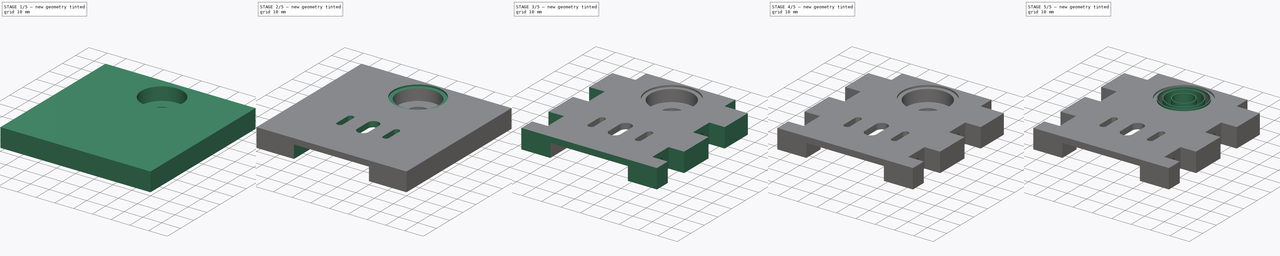
[diagram: build sequence overview — one tinted view per stage of 5, left to right]
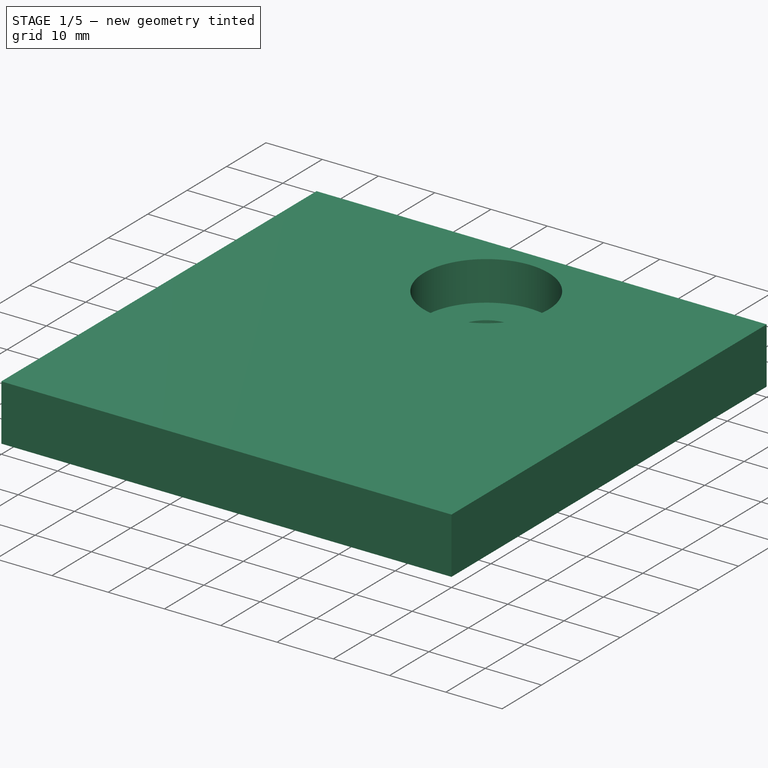
[diagram: stage 1 of 5 — iso view after this stage's code; geometry added in this stage tinted green]
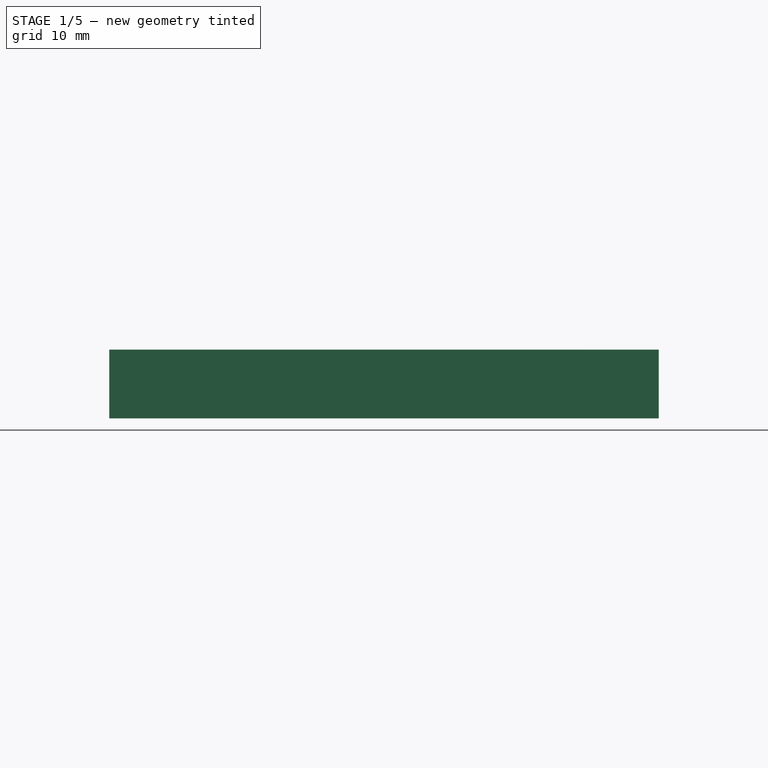
[diagram: stage 1 of 5 — front view after this stage's code; geometry added in this stage tinted green]
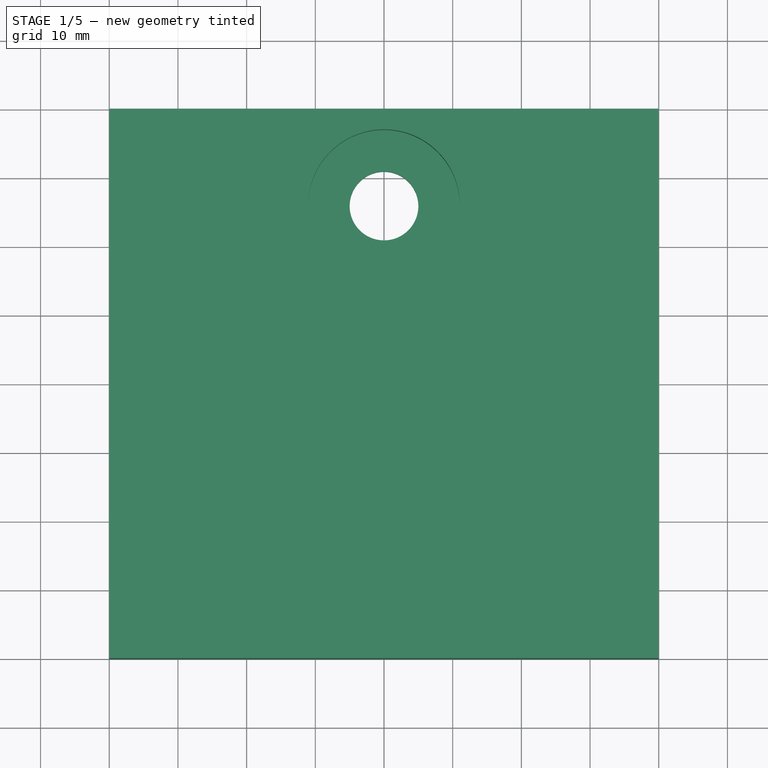
[diagram: stage 1 of 5 — top view after this stage's code; geometry added in this stage tinted green]
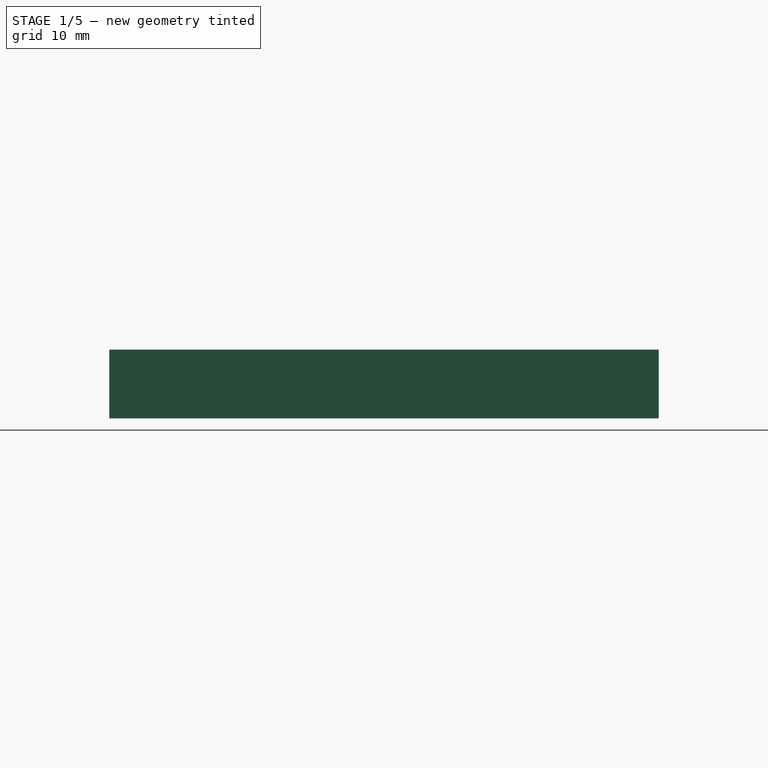
[diagram: stage 1 of 5 — right view after this stage's code; geometry added in this stage tinted green]
FCSTD DOCUMENT  (FreeCAD 0.15R4671 (Git))
Label: Halter Fraesspindel Top
License: All rights reserved
LicenseURL: http://de.wikipedia.org/wiki/Alle_Rechte_vorbehalten
objects: Sketcher::SketchObject×17, PartDesign::Pocket×12, PartDesign::Pad×5, Part::Cut×1
note: 52 computed .brp shape members not serialized (recipe doc carries the construction recipe); baked Part::Feature solids carry a one-line shape summary decoded from their .brp

FEATURE [Sketcher::SketchObject] Sketch
  sketch-geometry (4):
    g0: LineSegment StartX=-40 StartY=40 StartZ=0 EndX=40 EndY=40 EndZ=0
    g1: LineSegment StartX=40 StartY=40 StartZ=0 EndX=40 EndY=-40 EndZ=0
    g2: LineSegment StartX=40 StartY=-40 StartZ=0 EndX=-40 EndY=-40 EndZ=0
    g3: LineSegment StartX=-40 StartY=-40 StartZ=0 EndX=-40 EndY=40 EndZ=0
  constraints (12):
    c: Coincident(g0,g1)
    c: Coincident(g1,g2)
    c: Coincident(g2,g3)
    c: Coincident(g3,g0)
    c: Horizontal(g0)
    c: Horizontal(g2)
    c: Vertical(g1)
    c: Vertical(g3)
    c: Symmetric(g0,g2,g-1)
    c: Symmetric(g0,g0,g-2)
    c: DistanceY(g1) = -80
    c: Equal(g0,g1)
FEATURE [PartDesign::Pad] Pad
  Length = 10
  Length2 = 100
  Sketch = -> Sketch
  Type = 0
FEATURE [Sketcher::SketchObject] Sketch001
  ExternalGeometry = -> [Pad]
  Placement = pos=(0,0,10) rot=(0,0,1;0rad)
  Support = -> Pad [Face6]
  sketch-geometry (1):
    g0: Circle CenterX=0 CenterY=25.95 CenterZ=0 NormalX=0 NormalY=0 NormalZ=1 Radius=11.05
  constraints (3):
    c: PointOnObject(g0,g-2)
    c: Radius(g0) = 11.05
    c: DistanceY(g0,g-3) = 14.05
FEATURE [PartDesign::Pocket] Pocket
  Length = 7
  Sketch = -> Sketch001
  Type = 0
FEATURE [Sketcher::SketchObject] Sketch002
  ExternalGeometry = -> [Pocket]
  Placement = pos=(0,0,3) rot=(0,0,1;0rad)
  Support = -> Pocket [Face8]
  sketch-geometry (1):
    g0: Circle CenterX=0 CenterY=25.95 CenterZ=0 NormalX=0 NormalY=0 NormalZ=1 Radius=5
  constraints (2):
    c: Coincident(g0,g-3)
    c: Radius(g0) = 5
FEATURE [PartDesign::Pocket] Pocket001
  Length = 5
  Sketch = -> Sketch002
  Type = 1
FEATURE [Sketcher::SketchObject] Sketch016
  Placement = pos=(0,29,0) rot=(1,0,0;1.5708rad)
  sketch-geometry (20):
    g0: LineSegment [constr] StartX=-29 StartY=0.929681 StartZ=0 EndX=-25.475 EndY=2.96484 EndZ=0
    g1: LineSegment [constr] StartX=-25.475 StartY=2.96484 StartZ=0 EndX=-25.475 EndY=7.03516 EndZ=0
    g2: LineSegment StartX=-25.475 StartY=7.03516 StartZ=0 EndX=-29 EndY=9.07032 EndZ=0
    g3: LineSegment StartX=-29 StartY=9.07032 StartZ=0 EndX=-32.525 EndY=7.03516 EndZ=0
    g4: LineSegment StartX=-32.525 StartY=7.03516 StartZ=0 EndX=-32.525 EndY=2.96484 EndZ=0
    g5: LineSegment [constr] StartX=-32.525 StartY=2.96484 StartZ=0 EndX=-29 EndY=0.929681 EndZ=0
    g6: Circle [constr] CenterX=-29 CenterY=5 CenterZ=0 NormalX=0 NormalY=0 NormalZ=1 Radius=4.07032
    g7: LineSegment [constr] StartX=29 StartY=0.929681 StartZ=0 EndX=32.525 EndY=2.96484 EndZ=0
    g8: LineSegment [constr] StartX=32.525 StartY=2.96484 StartZ=0 EndX=32.525 EndY=7.03516 EndZ=0
    g9: LineSegment StartX=32.525 StartY=7.03516 StartZ=0 EndX=29 EndY=9.07032 EndZ=0
    g10: LineSegment StartX=29 StartY=9.07032 StartZ=0 EndX=25.475 EndY=7.03516 EndZ=0
    g11: LineSegment StartX=25.475 StartY=7.03516 StartZ=0 EndX=25.475 EndY=2.96484 EndZ=0
    g12: LineSegment [constr] StartX=25.475 StartY=2.96484 StartZ=0 EndX=29 EndY=0.929681 EndZ=0
    g13: Circle [constr] CenterX=29 CenterY=5 CenterZ=0 NormalX=0 NormalY=0 NormalZ=1 Radius=4.07032
    g14: LineSegment StartX=-25.475 StartY=7.03516 StartZ=0 EndX=-25.475 EndY=0 EndZ=0
    g15: LineSegment StartX=-25.475 StartY=0 StartZ=0 EndX=-32.525 EndY=0 EndZ=0
    g16: LineSegment StartX=-32.525 StartY=0 StartZ=0 EndX=-32.525 EndY=2.96484 EndZ=0
    g17: LineSegment StartX=32.525 StartY=7.03516 StartZ=0 EndX=32.525 EndY=0 EndZ=0
    g18: LineSegment StartX=32.525 StartY=0 StartZ=0 EndX=25.475 EndY=0 EndZ=0
    g19: LineSegment StartX=25.475 StartY=0 StartZ=0 EndX=25.475 EndY=2.96484 EndZ=0
  constraints (49):
    c: Coincident(g0,g1)
    c: Coincident(g1,g2)
    c: Coincident(g2,g3)
    c: Coincident(g3,g4)
    c: Coincident(g4,g5)
    c: Coincident(g5,g0)
    c: Equal(g0, g1-g5) x5
    c: PointOnObject(g0,g6)
    c: PointOnObject(g1,g6)
    c: PointOnObject(g2,g6)
    c: PointOnObject(g3,g6)
    c: PointOnObject(g4,g6)
    c: PointOnObject(g5,g6)
    c: Coincident(g7,g8)
    c: Coincident(g8,g9)
    c: Coincident(g9,g10)
    c: Coincident(g10,g11)
    c: Coincident(g11,g12)
    c: Coincident(g12,g7)
    c: Equal(g7, g8-g12) x5
    c: PointOnObject(g7,g13)
    c: PointOnObject(g8,g13)
    c: PointOnObject(g9,g13)
    c: PointOnObject(g10,g13)
    c: PointOnObject(g11,g13)
    c: PointOnObject(g12,g13)
    c: Equal(g13,g6)
    c: Symmetric(g6,g13,g-2)
    c: DistanceX(g-1,g6) = -29
    c: DistanceY(g-1,g6) = 5
    c: Distance(g0,g3) = 7.05
    c: Coincident(g14,g15)
    c: Coincident(g15,g16)
    c: Horizontal(g15)
    c: Vertical(g14)
    c: Vertical(g16)
    c: PointOnObject(g14,g-1)
    c: Coincident(g17,g18)
    c: Coincident(g18,g19)
    c: Horizontal(g18)
    c: Vertical(g17)
    c: Vertical(g19)
    c: PointOnObject(g17,g-1)
    c: Coincident(g8,g17)
    c: Coincident(g11,g19)
    c: Vertical(g8)
    c: Coincident(g1,g14)
    c: Coincident(g4,g16)
    c: Vertical(g1)
FEATURE [PartDesign::Pad] Pad001
  Length = 3.3
  Length2 = 100
  Placement = pos=(0,29,0) rot=(1,0,0;1.5708rad)
  Sketch = -> Sketch016
  Type = 0
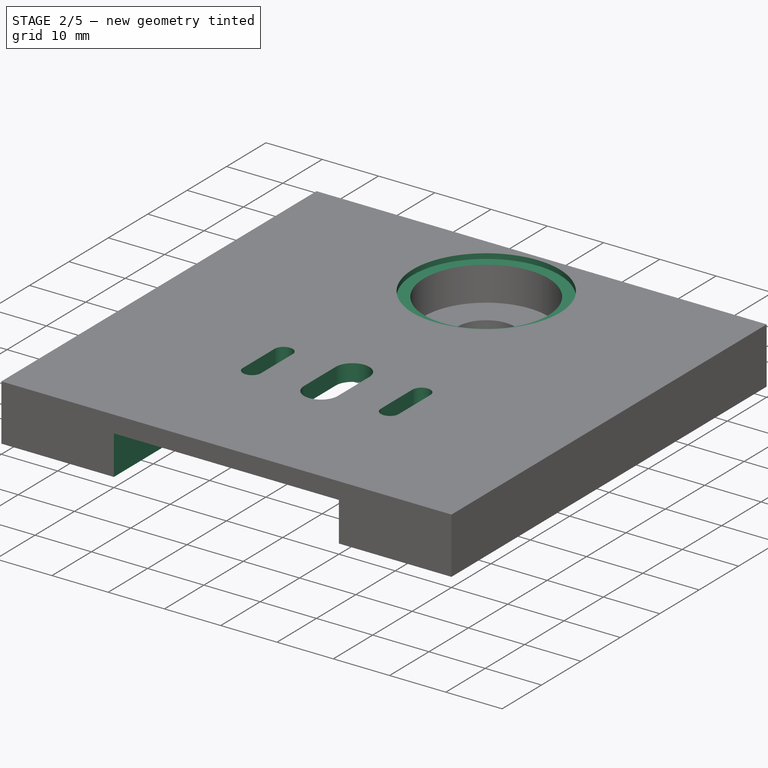
[diagram: stage 2 of 5 — iso view after this stage's code; geometry added in this stage tinted green]
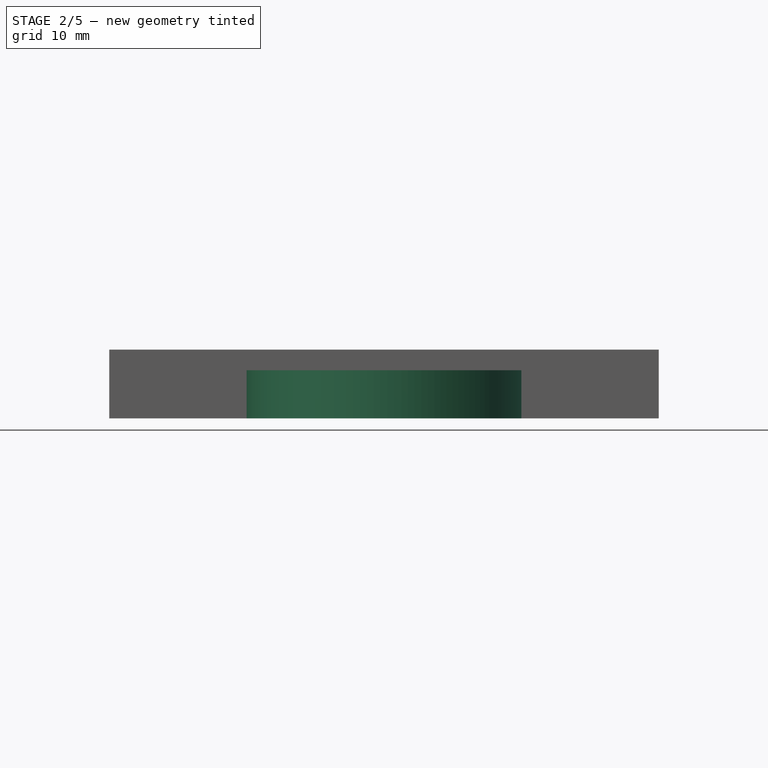
[diagram: stage 2 of 5 — front view after this stage's code; geometry added in this stage tinted green]
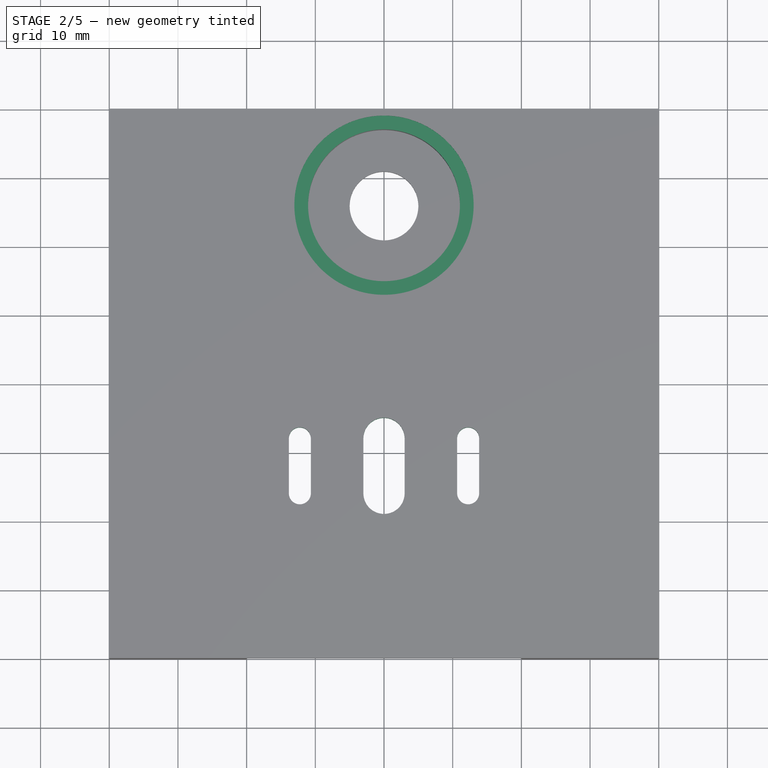
[diagram: stage 2 of 5 — top view after this stage's code; geometry added in this stage tinted green]
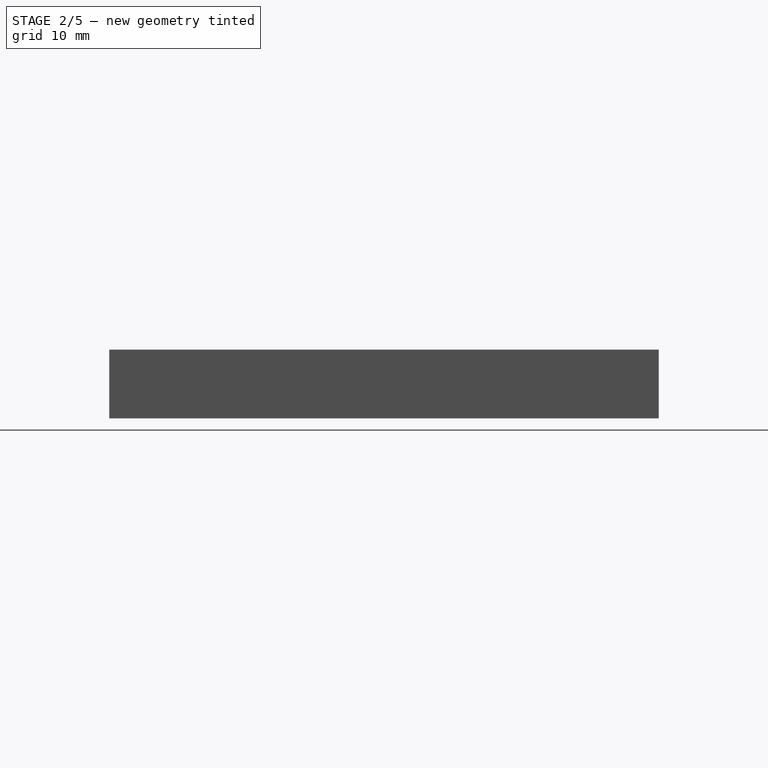
[diagram: stage 2 of 5 — right view after this stage's code; geometry added in this stage tinted green]
FEATURE [Sketcher::SketchObject] Sketch003
  ExternalGeometry = -> [Pocket001]
  Placement = pos=(0,0,10) rot=(0,0,1;0rad)
  Support = -> Pocket001 [Face5]
  sketch-geometry (1):
    g0: Circle CenterX=0 CenterY=25.95 CenterZ=0 NormalX=0 NormalY=0 NormalZ=1 Radius=13.05
  constraints (2):
    c: Coincident(g0,g-3)
    c: Radius(g0) = 13.05
FEATURE [PartDesign::Pocket] Pocket002
  Length = 0.9
  Sketch = -> Sketch003
  Type = 0
FEATURE [Sketcher::SketchObject] Sketch004
  ExternalGeometry = -> [Pocket002]
  Placement = pos=(0,0,0) rot=(1,0,0;3.14159rad)
  Support = -> Pocket002 [Face4]
  sketch-geometry (5):
    g0: LineSegment [constr] StartX=-40 StartY=-10 StartZ=0 EndX=40 EndY=-10 EndZ=0
    g1: ArcOfCircle CenterX=0 CenterY=10 CenterZ=0 NormalX=0 NormalY=0 NormalZ=1 Radius=20 StartAngle=3.14159 EndAngle=6.28319
    g2: LineSegment StartX=-20 StartY=40 StartZ=0 EndX=-20 EndY=10 EndZ=0
    g3: LineSegment StartX=20 StartY=40 StartZ=0 EndX=20 EndY=10 EndZ=0
    g4: LineSegment StartX=20 StartY=40 StartZ=0 EndX=-20 EndY=40 EndZ=0
  constraints (15):
    c: PointOnObject(g0,g-4)
    c: PointOnObject(g0,g-3)
    c: Horizontal(g0)
    c: DistanceY(g0,g-3) = -30
    c: Tangent(g2,g1) = -1.5708
    c: Tangent(g3,g1) = 1.5708
    c: Vertical(g2)
    c: PointOnObject(g1,g-2)
    c: Tangent(g1,g0)
    c: Radius(g1) = 20
    c: Coincident(g4,g3)
    c: Coincident(g4,g2)
    c: Horizontal(g4)
    c: Vertical(g3)
    c: PointOnObject(g-3,g4)
FEATURE [PartDesign::Pocket] Pocket003
  Length = 7
  Sketch = -> Sketch004
  Type = 0
FEATURE [Sketcher::SketchObject] Sketch005
  ExternalGeometry = -> [Pocket003]
  Placement = pos=(0,0,7) rot=(1,0,0;3.14159rad)
  Support = -> Pocket003 [Face12]
  sketch-geometry (17):
    g0: ArcOfCircle CenterX=0 CenterY=16 CenterZ=0 NormalX=0 NormalY=0 NormalZ=1 Radius=3 StartAngle=0 EndAngle=3.14159
    g1: ArcOfCircle CenterX=0 CenterY=8 CenterZ=0 NormalX=0 NormalY=0 NormalZ=1 Radius=3 StartAngle=3.14159 EndAngle=6.28319
    g2: LineSegment StartX=-3 StartY=16 StartZ=0 EndX=-3 EndY=8 EndZ=0
    g3: LineSegment StartX=3 StartY=16 StartZ=0 EndX=3 EndY=8 EndZ=0
    g4: LineSegment [constr] StartX=0 StartY=16 StartZ=0 EndX=0 EndY=12 EndZ=0
    g5: LineSegment [constr] StartX=0 StartY=12 StartZ=0 EndX=0 EndY=8 EndZ=0
    g6: Circle [constr] CenterX=-12.25 CenterY=12 CenterZ=0 NormalX=0 NormalY=0 NormalZ=1 Radius=1.6
    g7: Circle [constr] CenterX=12.25 CenterY=12 CenterZ=0 NormalX=0 NormalY=0 NormalZ=1 Radius=1.6
    g8: LineSegment [constr] StartX=-12.25 StartY=12 StartZ=0 EndX=12.25 EndY=12 EndZ=0
    g9: ArcOfCircle CenterX=12.25 CenterY=16 CenterZ=0 NormalX=0 NormalY=0 NormalZ=1 Radius=1.6 StartAngle=0 EndAngle=3.14159
    g10: ArcOfCircle CenterX=12.25 CenterY=8 CenterZ=0 NormalX=0 NormalY=0 NormalZ=1 Radius=1.6 StartAngle=3.14159 EndAngle=6.28319
    g11: LineSegment StartX=10.65 StartY=16 StartZ=0 EndX=10.65 EndY=8 EndZ=0
    g12: LineSegment StartX=13.85 StartY=16 StartZ=0 EndX=13.85 EndY=8 EndZ=0
    g13: ArcOfCircle CenterX=-12.25 CenterY=16 CenterZ=0 NormalX=0 NormalY=0 NormalZ=1 Radius=1.6 StartAngle=0 EndAngle=3.14159
    g14: ArcOfCircle CenterX=-12.25 CenterY=8 CenterZ=0 NormalX=0 NormalY=0 NormalZ=1 Radius=1.6 StartAngle=3.14159 EndAngle=6.28319
    g15: LineSegment StartX=-13.85 StartY=16 StartZ=0 EndX=-13.85 EndY=8 EndZ=0
    g16: LineSegment StartX=-10.65 StartY=16 StartZ=0 EndX=-10.65 EndY=8 EndZ=0
  constraints (43):
    c: Tangent(g0,g3) = 1.5708
    c: Tangent(g0,g2) = -1.5708
    c: Tangent(g2,g1) = -1.5708
    c: Tangent(g3,g1) = 1.5708
    c: Vertical(g2)
    c: Equal(g0,g1)
    c: Radius(g1) = 3
    c: PointOnObject(g1,g-2)
    c: Vertical(g4)
    c: Coincident(g4,g5)
    c: Vertical(g5)
    c: Equal(g4,g5)
    c: Coincident(g4,g0)
    c: Coincident(g5,g1)
    c: DistanceY(g1,g-4) = 2
    c: DistanceY(g3) = -8
    c: Symmetric(g7,g6,g-2)
    c: DistanceX(g6,g7) = 24.5
    c: Equal(g6,g7)
    c: Coincident(g6,g8)
    c: Coincident(g8,g7)
    c: PointOnObject(g4,g8)
    c: Tangent(g9,g12) = 1.5708
    c: Tangent(g9,g11) = -1.5708
    c: Tangent(g11,g10) = -1.5708
    c: Tangent(g12,g10) = 1.5708
    c: Vertical(g11)
    c: Equal(g9,g10)
    c: Equal(g7,g10)
    c: Radius(g6) = 1.6
    c: Symmetric(g9,g10,g8)
    c: Tangent(g11,g7)
    c: DistanceY(g12) = -8
    c: Tangent(g13,g16) = 1.5708
    c: Tangent(g13,g15) = -1.5708
    c: Tangent(g15,g14) = -1.5708
    c: Tangent(g16,g14) = 1.5708
    c: Vertical(g15)
    c: Equal(g13,g14)
    c: Equal(g14,g6)
    c: Tangent(g6,g16)
    c: Symmetric(g13,g14,g8)
    c: Equal(g15,g11)
FEATURE [PartDesign::Pocket] Pocket004
  Length = 5
  Sketch = -> Sketch005
  Type = 1
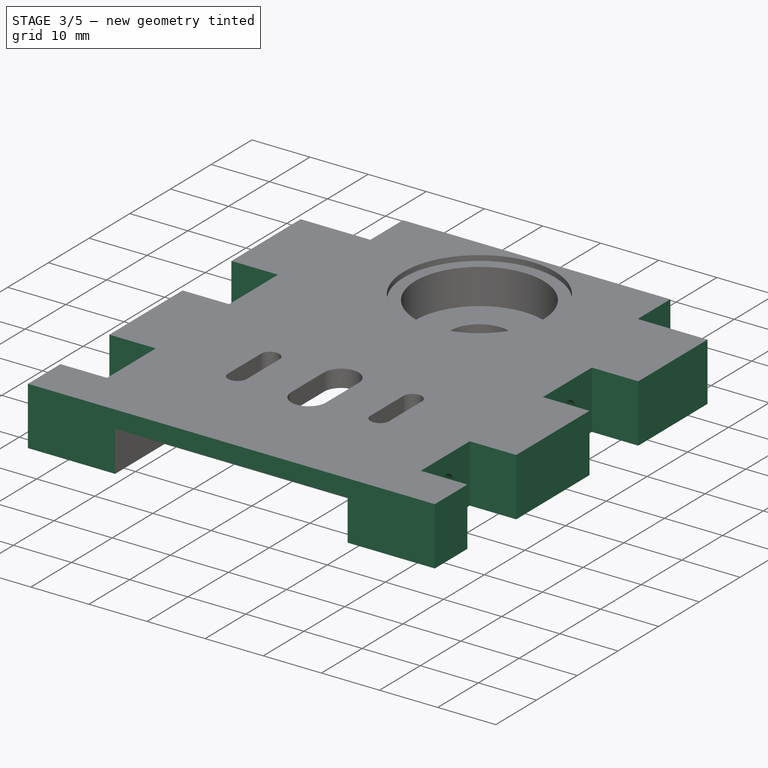
[diagram: stage 3 of 5 — iso view after this stage's code; geometry added in this stage tinted green]
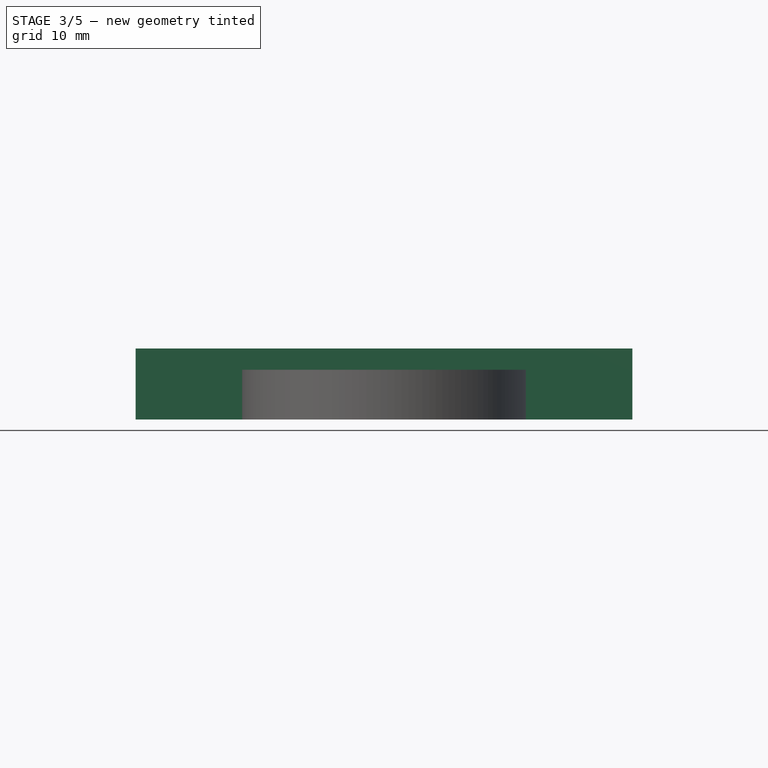
[diagram: stage 3 of 5 — front view after this stage's code; geometry added in this stage tinted green]
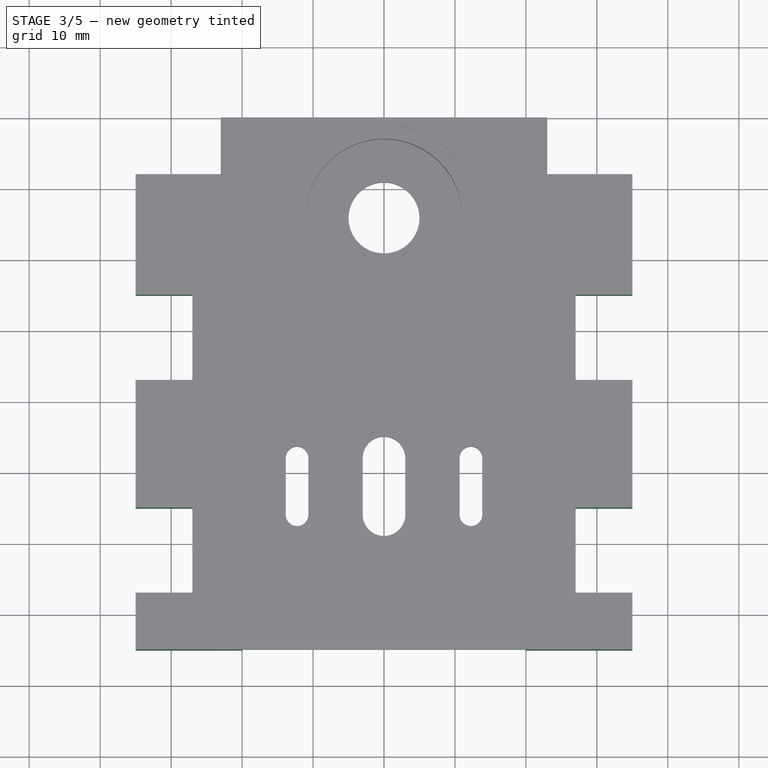
[diagram: stage 3 of 5 — top view after this stage's code; geometry added in this stage tinted green]
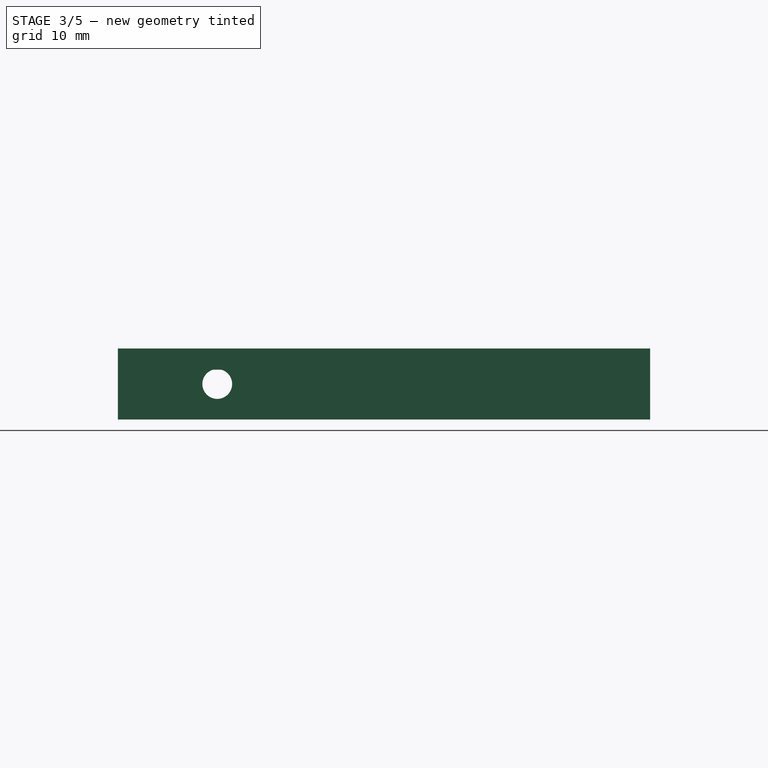
[diagram: stage 3 of 5 — right view after this stage's code; geometry added in this stage tinted green]
FEATURE [Sketcher::SketchObject] Sketch006
  ExternalGeometry = -> [Pocket004]
  Placement = pos=(0,0,10) rot=(0,0,1;0rad)
  Support = -> Pocket004 [Face5]
  sketch-geometry (14):
    g0: LineSegment StartX=-40 StartY=40 StartZ=0 EndX=-35 EndY=40 EndZ=0
    g1: LineSegment [constr] StartX=-35 StartY=40 StartZ=0 EndX=-35 EndY=-40 EndZ=0
    g2: LineSegment StartX=-35 StartY=-40 StartZ=0 EndX=-40 EndY=-40 EndZ=0
    g3: LineSegment StartX=-40 StartY=-40 StartZ=0 EndX=-40 EndY=40 EndZ=0
    g4: LineSegment StartX=40 StartY=40 StartZ=0 EndX=35 EndY=40 EndZ=0
    g5: LineSegment [constr] StartX=35 StartY=40 StartZ=0 EndX=35 EndY=-40 EndZ=0
    g6: LineSegment StartX=35 StartY=-40 StartZ=0 EndX=40 EndY=-40 EndZ=0
    g7: LineSegment StartX=40 StartY=-40 StartZ=0 EndX=40 EndY=40 EndZ=0
    g8: LineSegment StartX=-35 StartY=-40 StartZ=0 EndX=35 EndY=-40 EndZ=0
    g9: LineSegment [constr] StartX=35 StartY=-40 StartZ=0 EndX=35 EndY=-35 EndZ=0
    g10: LineSegment StartX=35 StartY=-35 StartZ=0 EndX=-35 EndY=-35 EndZ=0
    g11: LineSegment [constr] StartX=-35 StartY=-35 StartZ=0 EndX=-35 EndY=-40 EndZ=0
    g12: LineSegment StartX=-35 StartY=-35 StartZ=0 EndX=-35 EndY=40 EndZ=0
    g13: LineSegment StartX=35 StartY=40 StartZ=0 EndX=35 EndY=-35 EndZ=0
  constraints (37):
    c: Coincident(g0,g1)
    c: Coincident(g1,g2)
    c: Coincident(g2,g3)
    c: Coincident(g3,g0)
    c: Horizontal(g0)
    c: Horizontal(g2)
    c: Vertical(g1)
    c: Vertical(g3)
    c: Coincident(g0,g-4)
    c: Coincident(g4,g5)
    c: Coincident(g5,g6)
    c: Coincident(g6,g7)
    c: Coincident(g7,g4)
    c: Horizontal(g4)
    c: Horizontal(g6)
    c: Vertical(g5)
    c: Vertical(g7)
    c: Coincident(g4,g-3)
    c: Equal(g6,g2)
    c: Coincident(g2,g-4)
    c: Coincident(g6,g-3)
    c: DistanceX(g6) = 5
    c: Coincident(g8,g9)
    c: Coincident(g9,g10)
    c: Coincident(g10,g11)
    c: Coincident(g11,g8)
    c: Horizontal(g8)
    c: Horizontal(g10)
    c: Vertical(g9)
    c: Vertical(g11)
    c: DistanceY(g9) = 5
    c: Coincident(g8,g5)
    c: Coincident(g8,g1)
    c: Coincident(g12,g10)
    c: Coincident(g12,g0)
    c: Coincident(g13,g4)
    c: Coincident(g9,g13)
FEATURE [PartDesign::Pocket] Pocket005
  Length = 5
  Sketch = -> Sketch006
  Type = 1
FEATURE [Sketcher::SketchObject] Sketch009
  ExternalGeometry = -> [Pocket005]
  Placement = pos=(0,0,10) rot=(0,0,1;0rad)
  Support = -> Pocket005 [Face5]
  sketch-geometry (24):
    g0: LineSegment StartX=-35 StartY=15 StartZ=0 EndX=-27 EndY=15 EndZ=0
    g1: LineSegment StartX=-27 StartY=15 StartZ=0 EndX=-27 EndY=3 EndZ=0
    g2: LineSegment StartX=-27 StartY=3 StartZ=0 EndX=-35 EndY=3 EndZ=0
    g3: LineSegment StartX=-35 StartY=3 StartZ=0 EndX=-35 EndY=15 EndZ=0
    g4: LineSegment StartX=35 StartY=15 StartZ=0 EndX=27 EndY=15 EndZ=0
    g5: LineSegment StartX=27 StartY=15 StartZ=0 EndX=27 EndY=3 EndZ=0
    g6: LineSegment StartX=27 StartY=3 StartZ=0 EndX=35 EndY=3 EndZ=0
    g7: LineSegment StartX=35 StartY=3 StartZ=0 EndX=35 EndY=15 EndZ=0
    g8: LineSegment StartX=-35 StartY=-15 StartZ=0 EndX=-27 EndY=-15 EndZ=0
    g9: LineSegment StartX=-27 StartY=-15 StartZ=0 EndX=-27 EndY=-27 EndZ=0
    g10: LineSegment StartX=-27 StartY=-27 StartZ=0 EndX=-35 EndY=-27 EndZ=0
    g11: LineSegment StartX=-35 StartY=-27 StartZ=0 EndX=-35 EndY=-15 EndZ=0
    g12: LineSegment StartX=35 StartY=-15 StartZ=0 EndX=27 EndY=-15 EndZ=0
    g13: LineSegment StartX=27 StartY=-15 StartZ=0 EndX=27 EndY=-27 EndZ=0
    g14: LineSegment StartX=27 StartY=-27 StartZ=0 EndX=35 EndY=-27 EndZ=0
    g15: LineSegment StartX=35 StartY=-27 StartZ=0 EndX=35 EndY=-15 EndZ=0
    g16: LineSegment StartX=-35 StartY=40 StartZ=0 EndX=-23 EndY=40 EndZ=0
    g17: LineSegment StartX=-23 StartY=40 StartZ=0 EndX=-23 EndY=32 EndZ=0
    g18: LineSegment StartX=-23 StartY=32 StartZ=0 EndX=-35 EndY=32 EndZ=0
    g19: LineSegment StartX=-35 StartY=32 StartZ=0 EndX=-35 EndY=40 EndZ=0
    g20: LineSegment StartX=35 StartY=40 StartZ=0 EndX=23 EndY=40 EndZ=0
    g21: LineSegment StartX=23 StartY=40 StartZ=0 EndX=23 EndY=32 EndZ=0
    g22: LineSegment StartX=23 StartY=32 StartZ=0 EndX=35 EndY=32 EndZ=0
    g23: LineSegment StartX=35 StartY=32 StartZ=0 EndX=35 EndY=40 EndZ=0
  constraints (68):
    c: Coincident(g0,g1)
    c: Coincident(g1,g2)
    c: Coincident(g2,g3)
    c: Coincident(g3,g0)
    c: Horizontal(g0)
    c: Horizontal(g2)
    c: Vertical(g1)
    c: Vertical(g3)
    c: Coincident(g4,g5)
    c: Coincident(g5,g6)
    c: Coincident(g6,g7)
    c: Coincident(g7,g4)
    c: Horizontal(g4)
    c: Horizontal(g6)
    c: Vertical(g5)
    c: Vertical(g7)
    c: Coincident(g8,g9)
    c: Coincident(g9,g10)
    c: Coincident(g10,g11)
    c: Coincident(g11,g8)
    c: Horizontal(g8)
    c: Horizontal(g10)
    c: Vertical(g9)
    c: Vertical(g11)
    c: Coincident(g12,g13)
    c: Coincident(g13,g14)
    c: Coincident(g14,g15)
    c: Coincident(g15,g12)
    c: Horizontal(g12)
    c: Horizontal(g14)
    c: Vertical(g13)
    c: Vertical(g15)
    c: Equal(g8,g2)
    c: DistanceX(g0) = 8
    c: Symmetric(g1,g5,g-2)
    c: Symmetric(g9,g13,g-2)
    c: Coincident(g16,g17)
    c: Coincident(g17,g18)
    c: Coincident(g18,g19)
    c: Coincident(g19,g16)
    c: Horizontal(g16)
    c: Horizontal(g18)
    c: Vertical(g17)
    c: Vertical(g19)
    c: Coincident(g16,g-4)
    c: Coincident(g20,g21)
    c: Coincident(g21,g22)
    c: Coincident(g22,g23)
    c: Coincident(g23,g20)
    c: Horizontal(g20)
    c: Horizontal(g22)
    c: Vertical(g21)
    c: Vertical(g23)
    c: Coincident(g20,g-3)
    c: PointOnObject(g4,g-3)
    c: PointOnObject(g12,g-3)
    c: Equal(g4,g12)
    c: Equal(g8,g12)
    c: Equal(g5,g13)
    c: Equal(g13,g9)
    c: Equal(g9,g1)
    c: DistanceY(g13) = -12
    c: DistanceY(g16,g8) = -55
    c: DistanceY(g0,g16) = 25
    c: Equal(g18,g22)
    c: Equal(g22,g5)
    c: Equal(g21,g17)
    c: Equal(g17,g0)
FEATURE [PartDesign::Pocket] Pocket008
  Length = 5
  Sketch = -> Sketch009
  Type = 1
FEATURE [Sketcher::SketchObject] Sketch010
  ExternalGeometry = -> [Pocket008]
  Placement = pos=(-27,0,0) rot=(0.57735,-0.57735,-0.57735;2.0944rad)
  Support = -> Pocket008 [Face23]
  sketch-geometry (6):
    g0: LineSegment [constr] StartX=-15 StartY=10 StartZ=0 EndX=-3 EndY=0 EndZ=0
    g1: LineSegment [constr] StartX=-15 StartY=0 StartZ=0 EndX=-3 EndY=10 EndZ=0
    g2: LineSegment [constr] StartX=15 StartY=10 StartZ=0 EndX=27 EndY=0 EndZ=0
    g3: LineSegment [constr] StartX=15 StartY=0 StartZ=0 EndX=27 EndY=10 EndZ=0
    g4: Circle CenterX=-9 CenterY=5 CenterZ=0 NormalX=0 NormalY=0 NormalZ=1 Radius=2.1
    g5: Circle CenterX=21 CenterY=5 CenterZ=0 NormalX=0 NormalY=0 NormalZ=1 Radius=2.1
  constraints (14):
    c: Coincident(g0,g-6)
    c: Coincident(g0,g-5)
    c: Coincident(g1,g-6)
    c: Coincident(g1,g-5)
    c: Coincident(g2,g-4)
    c: Coincident(g2,g-3)
    c: Coincident(g3,g-4)
    c: Coincident(g3,g-3)
    c: Equal(g4,g5)
    c: Radius(g5) = 2.1
    c: PointOnObject(g4,g0)
    c: PointOnObject(g4,g1)
    c: PointOnObject(g5,g3)
    c: PointOnObject(g5,g2)
FEATURE [PartDesign::Pocket] Pocket009
  Length = 9
  Sketch = -> Sketch010
  Type = 0
FEATURE [Sketcher::SketchObject] Sketch011
  ExternalGeometry = -> [Pocket009]
  Placement = pos=(27,0,0) rot=(0.57735,0.57735,0.57735;2.0944rad)
  Support = -> Pocket009 [Face14]
  sketch-geometry (6):
    g0: LineSegment [constr] StartX=-27 StartY=0 StartZ=0 EndX=-15 EndY=10 EndZ=0
    g1: LineSegment [constr] StartX=-15 StartY=0 StartZ=0 EndX=-27 EndY=10 EndZ=0
    g2: LineSegment [constr] StartX=3 StartY=0 StartZ=0 EndX=15 EndY=10 EndZ=0
    g3: LineSegment [constr] StartX=15 StartY=0 StartZ=0 EndX=3 EndY=10 EndZ=0
    g4: Circle CenterX=-21 CenterY=5 CenterZ=0 NormalX=0 NormalY=0 NormalZ=1 Radius=2.1
    g5: Circle CenterX=9 CenterY=5 CenterZ=0 NormalX=0 NormalY=0 NormalZ=1 Radius=2.1
  constraints (14):
    c: Coincident(g0,g-4)
    c: Coincident(g0,g-3)
    c: Coincident(g1,g-4)
    c: Coincident(g2,g-5)
    c: Coincident(g2,g-6)
    c: Coincident(g3,g-6)
    c: Coincident(g3,g-5)
    c: PointOnObject(g5,g3)
    c: PointOnObject(g5,g2)
    c: PointOnObject(g4,g0)
    c: PointOnObject(g4,g1)
    c: Coincident(g1,g-3)
    c: Equal(g4,g5)
    c: Radius(g5) = 2.1
FEATURE [PartDesign::Pocket] Pocket010
  Length = 9
  Sketch = -> Sketch011
  Type = 0
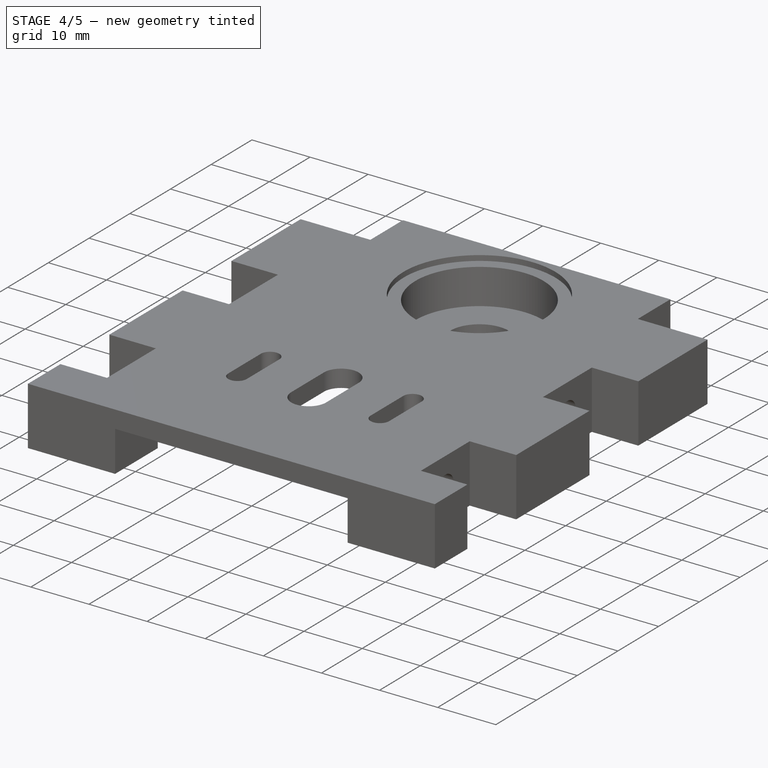
[diagram: stage 4 of 5 — iso view after this stage's code; geometry added in this stage tinted green]
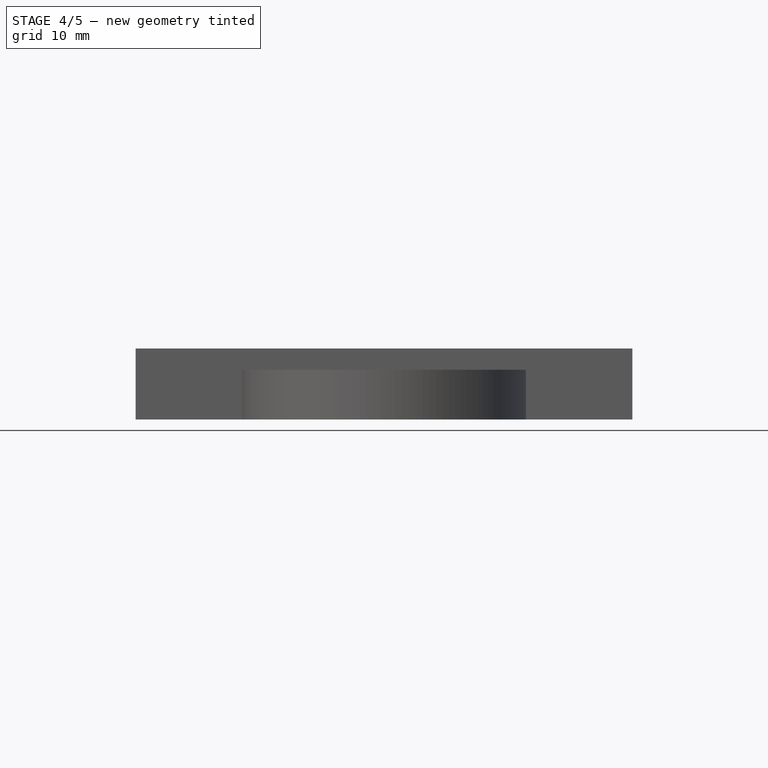
[diagram: stage 4 of 5 — front view after this stage's code; geometry added in this stage tinted green]
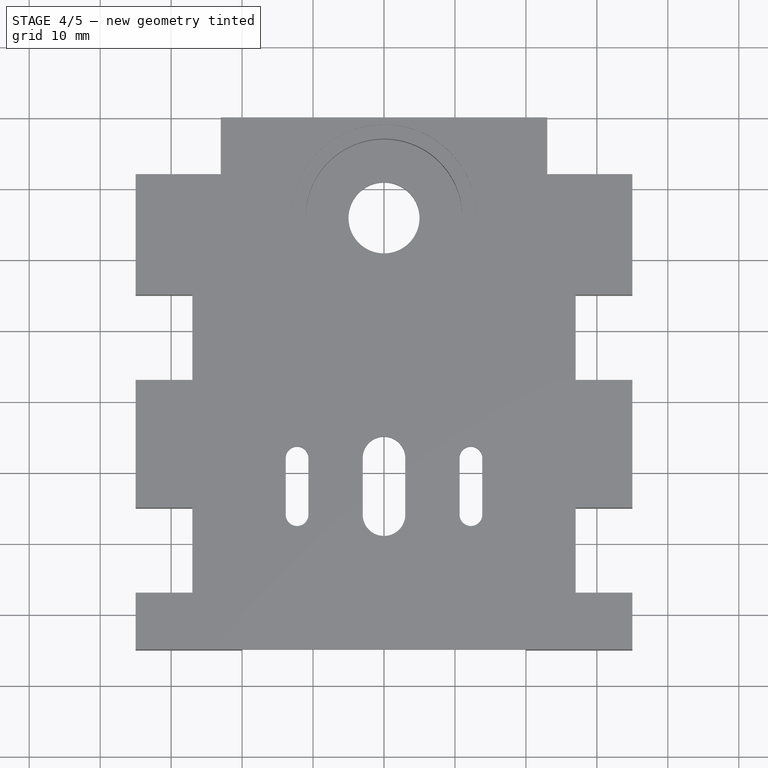
[diagram: stage 4 of 5 — top view after this stage's code; geometry added in this stage tinted green]
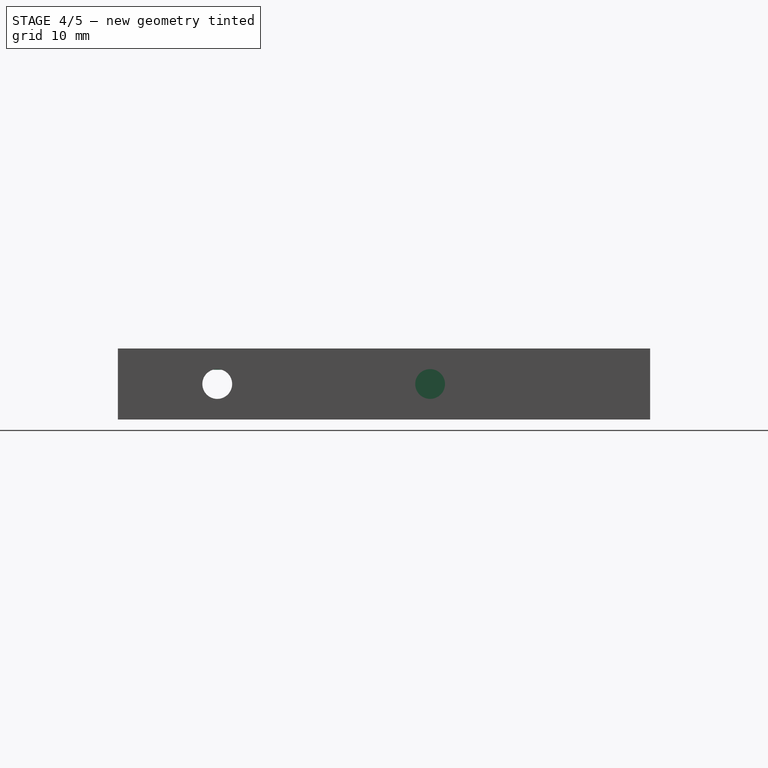
[diagram: stage 4 of 5 — right view after this stage's code; geometry added in this stage tinted green]
FEATURE [Sketcher::SketchObject] Sketch012
  ExternalGeometry = -> [Pocket010]
  Placement = pos=(0,32,0) rot=(0,0.707107,0.707107;3.14159rad)
  Support = -> Pocket010 [Face7]
  sketch-geometry (6):
    g0: LineSegment [constr] StartX=23 StartY=0 StartZ=0 EndX=35 EndY=10 EndZ=0
    g1: LineSegment [constr] StartX=23 StartY=10 StartZ=0 EndX=35 EndY=0 EndZ=0
    g2: LineSegment [constr] StartX=-35 StartY=0 StartZ=0 EndX=-23 EndY=10 EndZ=0
    g3: LineSegment [constr] StartX=-23 StartY=0 StartZ=0 EndX=-35 EndY=10 EndZ=0
    g4: Circle CenterX=-29 CenterY=5 CenterZ=0 NormalX=0 NormalY=0 NormalZ=1 Radius=2.1
    g5: Circle CenterX=29 CenterY=5 CenterZ=0 NormalX=0 NormalY=0 NormalZ=1 Radius=2.1
  constraints (14):
    c: Coincident(g0,g-6)
    c: Coincident(g0,g-3)
    c: Coincident(g1,g-6)
    c: Coincident(g1,g-3)
    c: Coincident(g2,g-4)
    c: Coincident(g2,g-5)
    c: Coincident(g3,g-5)
    c: Coincident(g3,g-4)
    c: PointOnObject(g4,g3)
    c: PointOnObject(g4,g2)
    c: PointOnObject(g5,g0)
    c: PointOnObject(g5,g1)
    c: Equal(g4,g5)
    c: Radius(g5) = 2.1
FEATURE [PartDesign::Pocket] Pocket011
  Length = 8.5
  Sketch = -> Sketch012
  Type = 0
FEATURE [Sketcher::SketchObject] Sketch013
  ExternalGeometry = -> [Pocket011]
  Placement = pos=(20,0,0) rot=(0.57735,-0.57735,-0.57735;2.0944rad)
  Support = -> Pocket011 [Face18]
  sketch-geometry (21):
    g0: LineSegment [constr] StartX=-5.475 StartY=2.96484 StartZ=0 EndX=-5.475 EndY=7.03516 EndZ=0
    g1: LineSegment StartX=-5.475 StartY=7.03516 StartZ=0 EndX=-9 EndY=9.07032 EndZ=0
    g2: LineSegment StartX=-9 StartY=9.07032 StartZ=0 EndX=-12.525 EndY=7.03516 EndZ=0
    g3: LineSegment StartX=-12.525 StartY=7.03516 StartZ=0 EndX=-12.525 EndY=2.96484 EndZ=0
    g4: LineSegment [constr] StartX=-12.525 StartY=2.96484 StartZ=0 EndX=-9 EndY=0.929681 EndZ=0
    g5: LineSegment [constr] StartX=-9 StartY=0.929681 StartZ=0 EndX=-5.475 EndY=2.96484 EndZ=0
    g6: Circle [constr] CenterX=-9 CenterY=5 CenterZ=0 NormalX=0 NormalY=0 NormalZ=1 Radius=4.07032
    g7: LineSegment StartX=21 StartY=9.07032 StartZ=0 EndX=17.475 EndY=7.03516 EndZ=0
    g8: LineSegment StartX=17.475 StartY=7.03516 StartZ=0 EndX=17.475 EndY=2.96484 EndZ=0
    g9: LineSegment [constr] StartX=17.475 StartY=2.96484 StartZ=0 EndX=21 EndY=0.929681 EndZ=0
    g10: LineSegment [constr] StartX=21 StartY=0.929681 StartZ=0 EndX=24.525 EndY=2.96484 EndZ=0
    g11: LineSegment StartX=24.525 StartY=2.96484 StartZ=0 EndX=24.525 EndY=7.03516 EndZ=0
    g12: LineSegment StartX=24.525 StartY=7.03516 StartZ=0 EndX=21 EndY=9.07032 EndZ=0
    g13: Circle [constr] CenterX=21 CenterY=5 CenterZ=0 NormalX=0 NormalY=0 NormalZ=1 Radius=4.07032
    g14: LineSegment [constr] StartX=-9 StartY=5 StartZ=0 EndX=21 EndY=5 EndZ=0
    g15: LineSegment StartX=-12.525 StartY=2.96484 StartZ=0 EndX=-12.525 EndY=0 EndZ=0
    g16: LineSegment StartX=-12.525 StartY=0 StartZ=0 EndX=-5.475 EndY=0 EndZ=0
    g17: LineSegment StartX=-5.475 StartY=0 StartZ=0 EndX=-5.475 EndY=7.03516 EndZ=0
    g18: LineSegment StartX=17.475 StartY=0 StartZ=0 EndX=24.525 EndY=0 EndZ=0
    g19: LineSegment StartX=17.475 StartY=2.96484 StartZ=0 EndX=17.475 EndY=0 EndZ=0
    g20: LineSegment StartX=24.525 StartY=0 StartZ=0 EndX=24.525 EndY=2.96484 EndZ=0
  constraints (52):
    c: Coincident(g0,g1)
    c: Coincident(g1,g2)
    c: Coincident(g2,g3)
    c: Coincident(g3,g4)
    c: Coincident(g4,g5)
    c: Coincident(g5,g0)
    c: Equal(g0, g1-g5) x5
    c: PointOnObject(g0,g6)
    c: PointOnObject(g1,g6)
    c: PointOnObject(g2,g6)
    c: PointOnObject(g3,g6)
    c: PointOnObject(g4,g6)
    c: PointOnObject(g5,g6)
    c: Coincident(g7,g8)
    c: Coincident(g8,g9)
    c: Coincident(g9,g10)
    c: Coincident(g10,g11)
    c: Coincident(g11,g12)
    c: Coincident(g12,g7)
    c: Equal(g7, g8-g12) x5
    c: PointOnObject(g7,g13)
    c: PointOnObject(g8,g13)
    c: PointOnObject(g9,g13)
    c: PointOnObject(g10,g13)
    c: PointOnObject(g11,g13)
    c: PointOnObject(g12,g13)
    c: Coincident(g10,g-3)
    c: Coincident(g13,g-3)
    c: Equal(g6,g13)
    c: Coincident(g14,g6)
    c: Coincident(g14,g13)
    c: Horizontal(g14)
    c: Coincident(g3,g15)
    c: PointOnObject(g15,g-1)
    c: Vertical(g15)
    c: Coincident(g15,g16)
    c: Coincident(g16,g17)
    c: Coincident(g0,g17)
    c: Vertical(g17)
    c: PointOnObject(g16,g-1)
    c: PointOnObject(g18,g-1)
    c: DistanceX(g14) = 30
    c: Distance(g9,g11) = 7.05
    c: Vertical(g11)
    c: Coincident(g19,g8)
    c: Coincident(g19,g18)
    c: Vertical(g19)
    c: PointOnObject(g18,g-1)
    c: Coincident(g20,g18)
    c: Coincident(g20,g10)
    c: Vertical(g20)
    c: Vertical(g0)
FEATURE [PartDesign::Pocket] Pocket012
  Length = 5.1
  Midplane = true
  Reversed = true
  Sketch = -> Sketch013
  Type = 0
FEATURE [Sketcher::SketchObject] Sketch014
  ExternalGeometry = -> [Pocket012]
  Placement = pos=(-20,0,0) rot=(0.57735,0.57735,0.57735;2.0944rad)
  Support = -> Pocket012 [Face24]
  sketch-geometry (21):
    g0: LineSegment [constr] StartX=-17.475 StartY=2.96484 StartZ=0 EndX=-17.475 EndY=7.03516 EndZ=0
    g1: LineSegment StartX=-17.475 StartY=7.03516 StartZ=0 EndX=-21 EndY=9.07032 EndZ=0
    g2: LineSegment StartX=-21 StartY=9.07032 StartZ=0 EndX=-24.525 EndY=7.03516 EndZ=0
    g3: LineSegment StartX=-24.525 StartY=7.03516 StartZ=0 EndX=-24.525 EndY=2.96484 EndZ=0
    g4: LineSegment [constr] StartX=-24.525 StartY=2.96484 StartZ=0 EndX=-21 EndY=0.929681 EndZ=0
    g5: LineSegment [constr] StartX=-21 StartY=0.929681 StartZ=0 EndX=-17.475 EndY=2.96484 EndZ=0
    g6: Circle [constr] CenterX=-21 CenterY=5 CenterZ=0 NormalX=0 NormalY=0 NormalZ=1 Radius=4.07032
    g7: LineSegment [constr] StartX=12.525 StartY=2.96484 StartZ=0 EndX=12.525 EndY=7.03516 EndZ=0
    g8: LineSegment StartX=12.525 StartY=7.03516 StartZ=0 EndX=9 EndY=9.07032 EndZ=0
    g9: LineSegment StartX=9 StartY=9.07032 StartZ=0 EndX=5.475 EndY=7.03516 EndZ=0
    g10: LineSegment StartX=5.475 StartY=7.03516 StartZ=0 EndX=5.475 EndY=2.96484 EndZ=0
    g11: LineSegment [constr] StartX=5.475 StartY=2.96484 StartZ=0 EndX=9 EndY=0.929681 EndZ=0
    g12: LineSegment [constr] StartX=9 StartY=0.929681 StartZ=0 EndX=12.525 EndY=2.96484 EndZ=0
    g13: Circle [constr] CenterX=9 CenterY=5 CenterZ=0 NormalX=0 NormalY=0 NormalZ=1 Radius=4.07032
    g14: LineSegment [constr] StartX=-21 StartY=5 StartZ=0 EndX=9 EndY=5 EndZ=0
    g15: LineSegment StartX=-17.475 StartY=7.03516 StartZ=0 EndX=-17.475 EndY=0 EndZ=0
    g16: LineSegment StartX=-17.475 StartY=0 StartZ=0 EndX=-24.525 EndY=0 EndZ=0
    g17: LineSegment StartX=-24.525 StartY=0 StartZ=0 EndX=-24.525 EndY=2.96484 EndZ=0
    g18: LineSegment StartX=12.525 StartY=7.03516 StartZ=0 EndX=12.525 EndY=0 EndZ=0
    g19: LineSegment StartX=12.525 StartY=0 StartZ=0 EndX=5.475 EndY=0 EndZ=0
    g20: LineSegment StartX=5.475 StartY=0 StartZ=0 EndX=5.475 EndY=2.96484 EndZ=0
  constraints (51):
    c: Coincident(g0,g1)
    c: Coincident(g1,g2)
    c: Coincident(g2,g3)
    c: Coincident(g3,g4)
    c: Coincident(g4,g5)
    c: Equal(g0, g1-g5) x5
    c: PointOnObject(g0,g6)
    c: PointOnObject(g1,g6)
    c: PointOnObject(g2,g6)
    c: PointOnObject(g3,g6)
    c: PointOnObject(g4,g6)
    c: PointOnObject(g5,g6)
    c: Coincident(g7,g8)
    c: Coincident(g8,g9)
    c: Coincident(g9,g10)
    c: Coincident(g10,g11)
    c: Coincident(g11,g12)
    c: Coincident(g12,g7)
    c: Equal(g7, g8-g12) x5
    c: PointOnObject(g7,g13)
    c: PointOnObject(g8,g13)
    c: PointOnObject(g9,g13)
    c: PointOnObject(g10,g13)
    c: PointOnObject(g11,g13)
    c: PointOnObject(g12,g13)
    c: Coincident(g14,g6)
    c: Coincident(g14,g13)
    c: Horizontal(g14)
    c: Equal(g13,g6)
    c: DistanceX(g14) = 30
    c: Coincident(g15,g16)
    c: Coincident(g16,g17)
    c: Horizontal(g16)
    c: Vertical(g15)
    c: Vertical(g17)
    c: Coincident(g18,g19)
    c: Coincident(g19,g20)
    c: Horizontal(g19)
    c: Vertical(g18)
    c: Vertical(g20)
    c: PointOnObject(g19,g-1)
    c: PointOnObject(g15,g-1)
    c: Distance(g11,g9) = 7.05
    c: Coincident(g0,g5)
    c: Coincident(g-3,g6)
    c: Vertical(g0)
    c: Vertical(g7)
    c: Coincident(g20,g10)
    c: Coincident(g18,g7)
    c: Coincident(g15,g0)
    c: Coincident(g17,g3)
FEATURE [PartDesign::Pocket] Pocket013
  Length = 5.1
  Midplane = true
  Sketch = -> Sketch014
  Type = 0
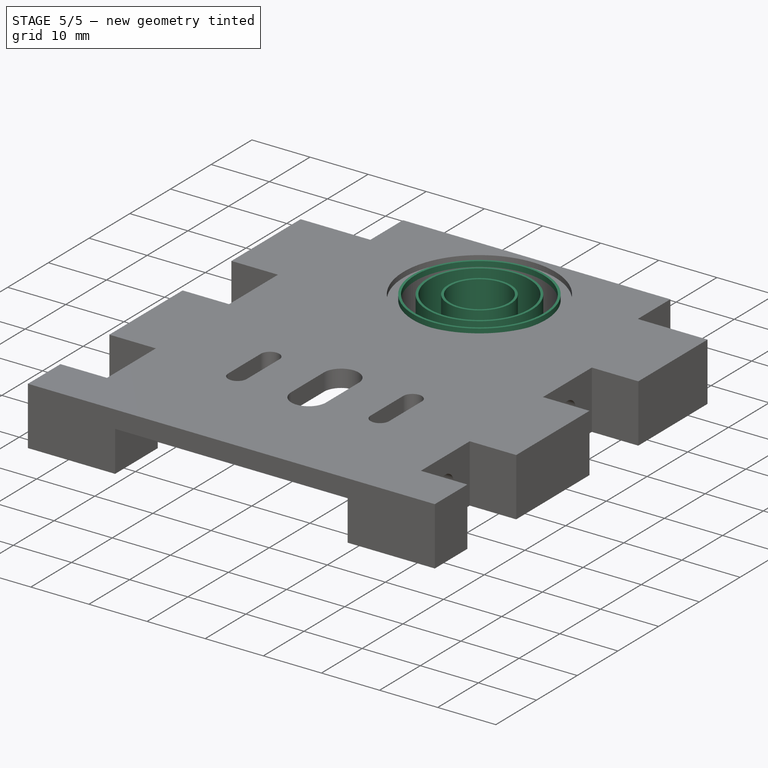
[diagram: stage 5 of 5 — iso view after this stage's code; geometry added in this stage tinted green]
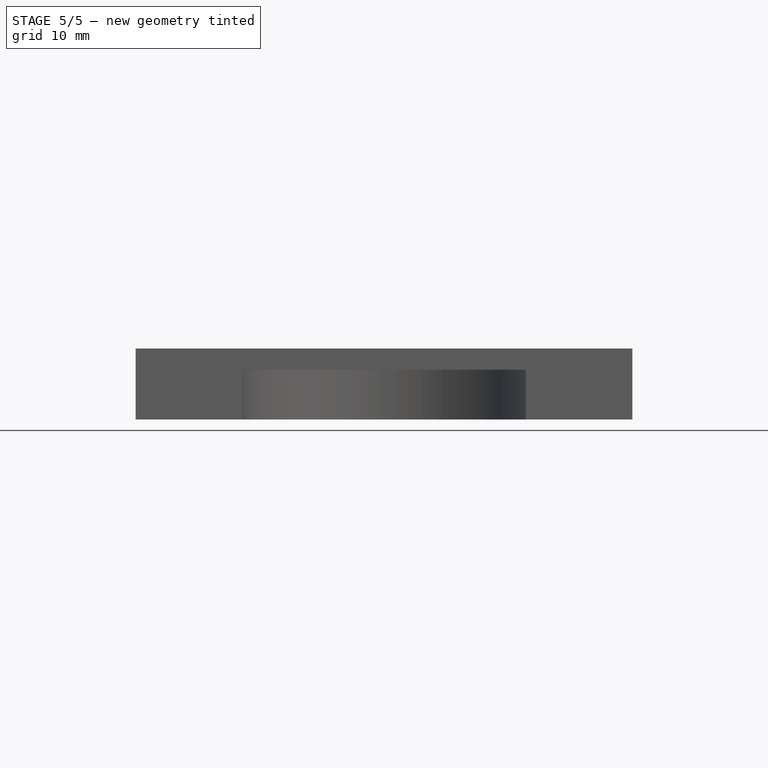
[diagram: stage 5 of 5 — front view after this stage's code; geometry added in this stage tinted green]
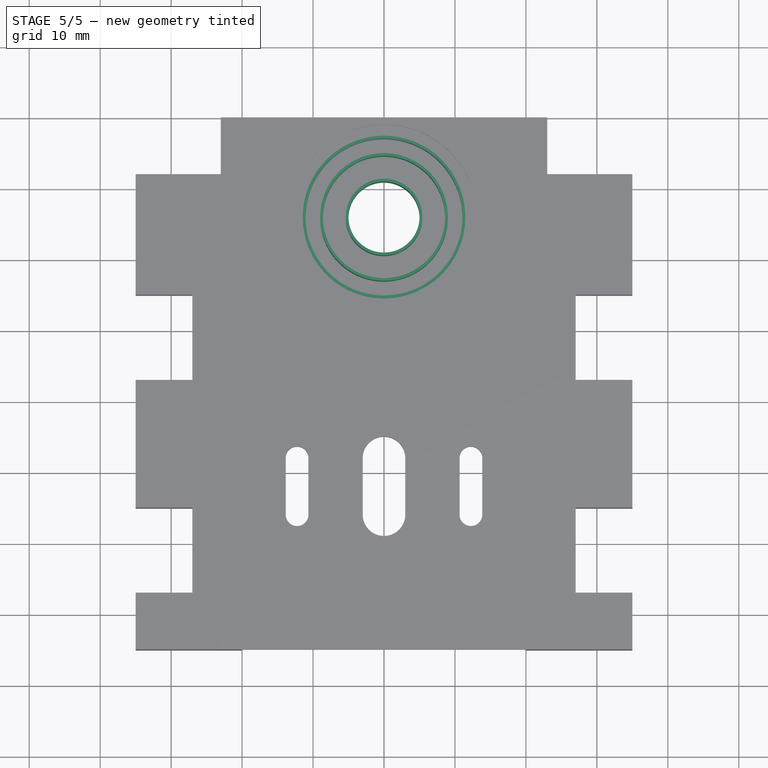
[diagram: stage 5 of 5 — top view after this stage's code; geometry added in this stage tinted green]
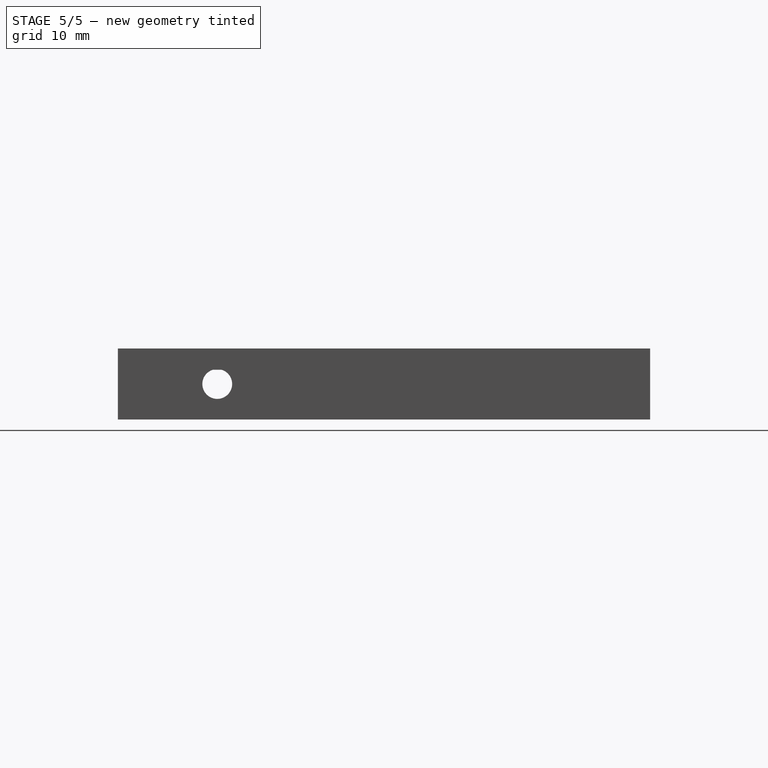
[diagram: stage 5 of 5 — right view after this stage's code; geometry added in this stage tinted green]
FEATURE [Part::Cut] Cut  label="Halter Fraesspindel Top"
  Base = -> Pocket013
  Tool = -> Pad001
FEATURE [Sketcher::SketchObject] Sketch017
  ExternalGeometry = -> [Cut]
  Placement = pos=(0,0,3) rot=(0,0,1;0rad)
  Support = -> Cut [Face83]
  sketch-geometry (2):
    g0: Circle CenterX=0 CenterY=25.95 CenterZ=0 NormalX=0 NormalY=0 NormalZ=1 Radius=5
    g1: Circle CenterX=0 CenterY=25.95 CenterZ=0 NormalX=0 NormalY=0 NormalZ=1 Radius=5.4
  constraints (4):
    c: Coincident(g0,g-3)
    c: Equal(g0,g-3)
    c: Coincident(g1,g0)
    c: Radius(g1) = 5.4
FEATURE [PartDesign::Pad] Pad002
  Length = 7
  Length2 = 100
  Sketch = -> Sketch017
  Type = 0
FEATURE [Sketcher::SketchObject] Sketch018
  ExternalGeometry = -> [Pad002]
  Placement = pos=(0,0,9.1) rot=(0,0,1;0rad)
  Support = -> Pad002 [Face8]
  sketch-geometry (2):
    g0: Circle CenterX=0 CenterY=25.95 CenterZ=0 NormalX=0 NormalY=0 NormalZ=1 Radius=11.45
    g1: Circle CenterX=0 CenterY=25.95 CenterZ=0 NormalX=0 NormalY=0 NormalZ=1 Radius=11.05
  constraints (4):
    c: Coincident(g0,g-3)
    c: Radius(g0) = 11.45
    c: Coincident(g1,g0)
    c: Equal(g1,g-3)
FEATURE [PartDesign::Pad] Pad003
  Length = 0.9
  Length2 = 100
  Sketch = -> Sketch018
  Type = 0
FEATURE [Sketcher::SketchObject] Sketch019
  ExternalGeometry = -> [Pad003]
  Placement = pos=(0,0,3) rot=(0,0,1;0rad)
  Support = -> Pad003 [Face4]
  sketch-geometry (2):
    g0: Circle CenterX=0 CenterY=25.95 CenterZ=0 NormalX=0 NormalY=0 NormalZ=1 Radius=9
    g1: Circle CenterX=-0.000162 CenterY=25.9503 CenterZ=0 NormalX=0 NormalY=0 NormalZ=1 Radius=8.6
  constraints (3):
    c: Coincident(g0,g-3)
    c: Radius(g0) = 9
    c: Radius(g1) = 8.6
FEATURE [PartDesign::Pad] Pad004  label="Halter Fraesspindel Top - Druckbar"
  Length = 7
  Length2 = 100
  Sketch = -> Sketch019
  Type = 0
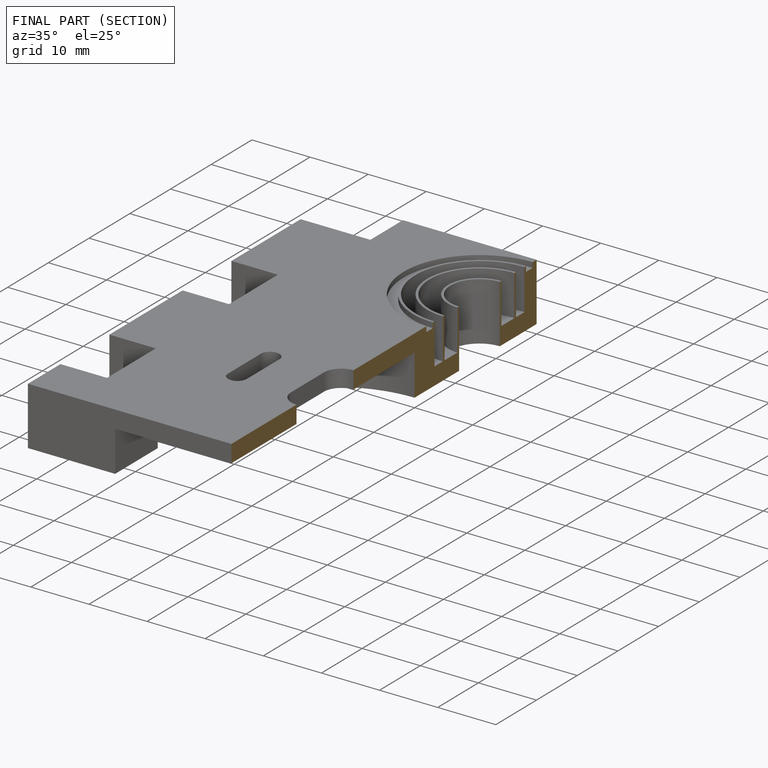
[diagram: finished part — half-section view (interior)]
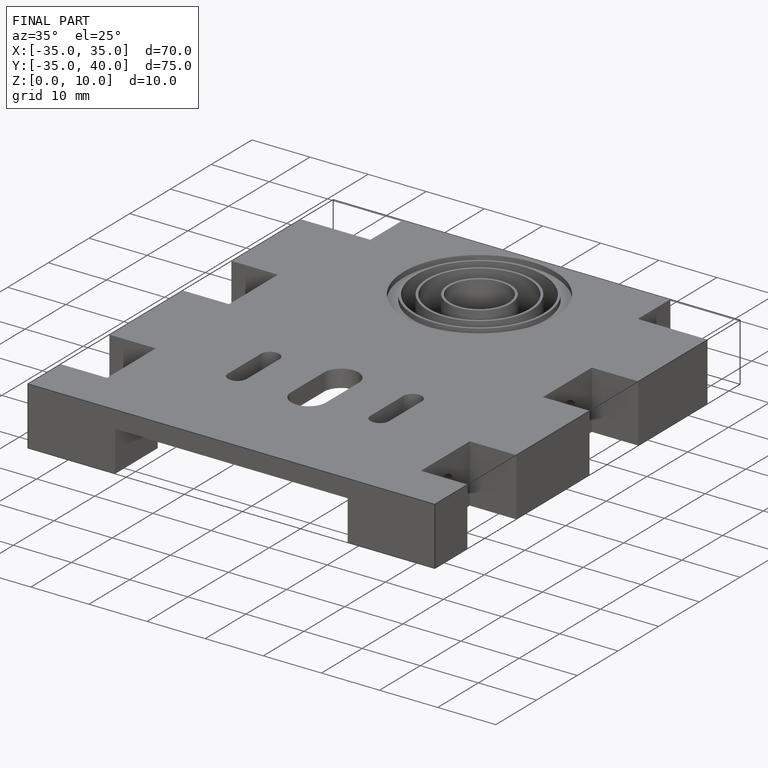
[diagram: finished part — iso view with bounding-box wireframe]
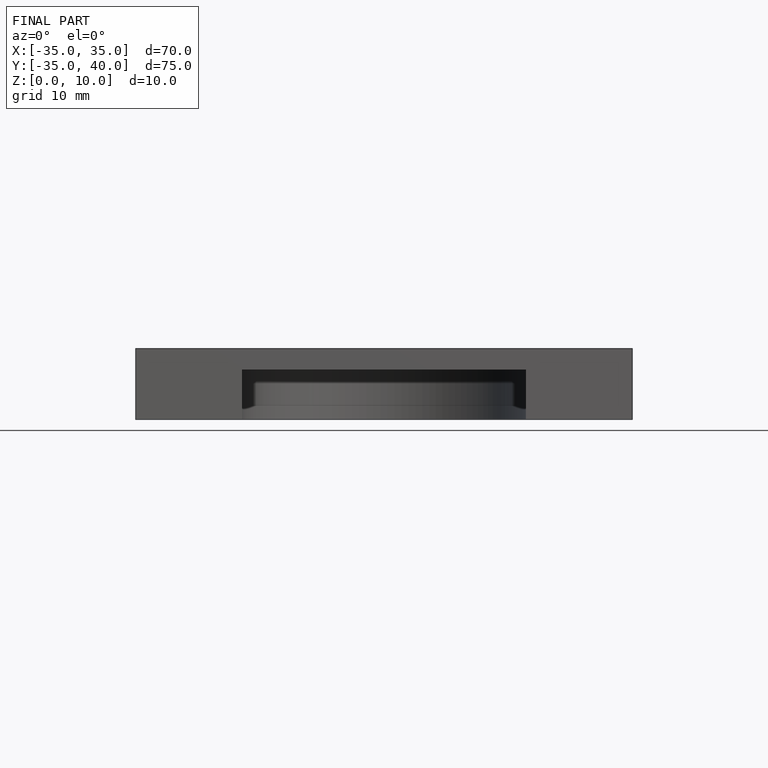
[diagram: finished part — front view with bounding-box wireframe]
